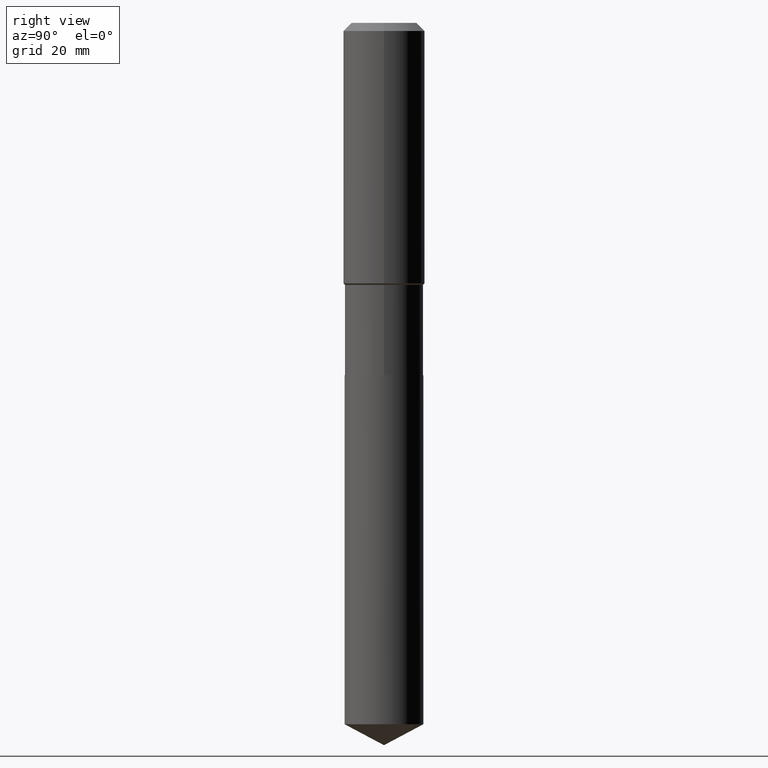
[diagram: clean part render]
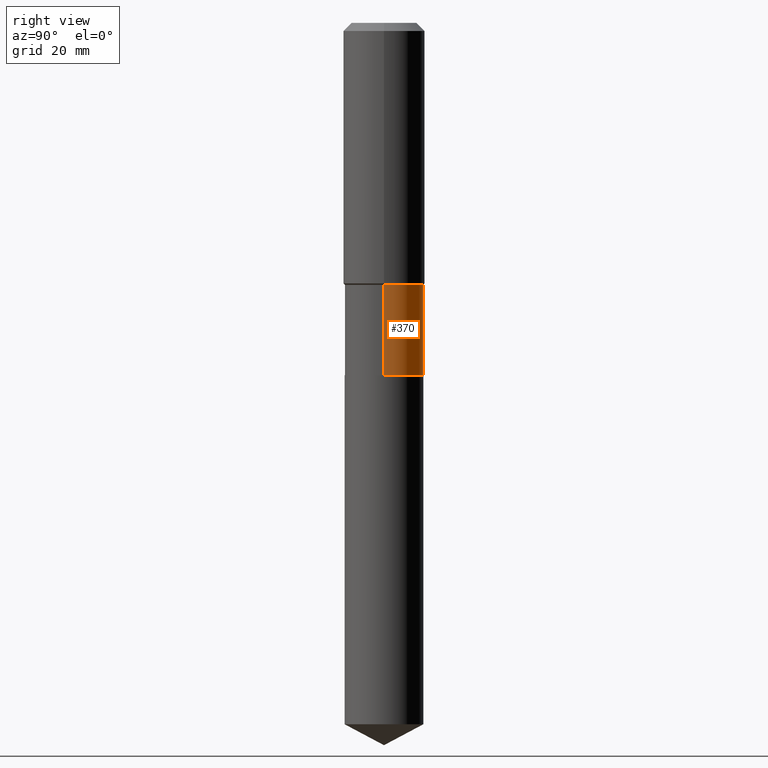
[diagram: same view with one face highlighted and labeled with its STEP entity id]
A machine part, right view. The second image highlights one B-rep face of the part: STEP entity #370.
In plain terms, the highlighted cylindrical surface (partial cylindrical patch) has radius 6.7501 mm, axis along (-0, 0, 1).
Its self-contained STEP definition (entity closure, byte-faithful):
#37 = ORIENTED_EDGE ( 'NONE', *, *, #309, .F. ) ;
#38 = CARTESIAN_POINT ( 'NONE',  ( 0.2657499999999999862, -8.038088338284680266E-15, -1.770699999999999275 ) ) ;
#53 = CARTESIAN_POINT ( 'NONE',  ( 0.000000000000000000, 0.000000000000000000, 0.000000000000000000 ) ) ;
#76 = CIRCLE ( 'NONE', #215, 0.2657499999999999862 ) ;
#87 = AXIS2_PLACEMENT_3D ( 'NONE', #53, #120, #267 ) ;
#92 = CYLINDRICAL_SURFACE ( 'NONE', #87, 0.2657500000000000417 ) ;
#115 = VERTEX_POINT ( 'NONE', #195 ) ;
#120 = DIRECTION ( 'NONE',  ( -2.445468806185136597E-29, 3.491481338843145583E-15, 1.000000000000000000 ) ) ;
#131 = FACE_OUTER_BOUND ( 'NONE', #350, .T. ) ;
#132 = VERTEX_POINT ( 'NONE', #262 ) ;
#139 = CIRCLE ( 'NONE', #458, 0.2657500000000000417 ) ;
#143 = VECTOR ( 'NONE', #310, 39.37007874015748143 ) ;
#154 = CARTESIAN_POINT ( 'NONE',  ( -0.2657500000000000417, 1.888267320282466541E-15, -1.307207000235241229E-29 ) ) ;
#178 = VECTOR ( 'NONE', #268, 39.37007874015748143 ) ;
#195 = CARTESIAN_POINT ( 'NONE',  ( -0.2657500000000000973, -5.360222513222844389E-15, -2.381399999999999739 ) ) ;
#203 = ORIENTED_EDGE ( 'NONE', *, *, #489, .F. ) ;
#215 = AXIS2_PLACEMENT_3D ( 'NONE', #277, #481, #230 ) ;
#219 = CARTESIAN_POINT ( 'NONE',  ( 5.823639415049283689E-29, -8.314613660321065363E-15, -2.381399999999999739 ) ) ;
#228 = CARTESIAN_POINT ( 'NONE',  ( -0.2657499999999999862, -5.360222513222844389E-15, -1.770699999999999275 ) ) ;
#230 = DIRECTION ( 'NONE',  ( 1.000000000000000000, -6.982962677686264344E-15, 0.000000000000000000 ) ) ;
#255 = EDGE_CURVE ( 'NONE', #132, #115, #139, .T. ) ;
#262 = CARTESIAN_POINT ( 'NONE',  ( 0.2657500000000000417, -1.017033599191619229E-14, -2.381399999999999739 ) ) ;
#263 = ORIENTED_EDGE ( 'NONE', *, *, #469, .T. ) ;
#267 = DIRECTION ( 'NONE',  ( 1.000000000000000000, -6.982962677686265133E-15, 4.876176775795935232E-29 ) ) ;
#268 = DIRECTION ( 'NONE',  ( -2.445468806185136877E-29, 3.491481338843145188E-15, 1.000000000000000000 ) ) ;
#277 = CARTESIAN_POINT ( 'NONE',  ( 4.330191615112019703E-29, -6.182366006689555708E-15, -1.770699999999999275 ) ) ;
#293 = ORIENTED_EDGE ( 'NONE', *, *, #255, .T. ) ;
#304 = VERTEX_POINT ( 'NONE', #38 ) ;
#309 = EDGE_CURVE ( 'NONE', #304, #444, #76, .T. ) ;
#310 = DIRECTION ( 'NONE',  ( -2.445468806185136877E-29, 3.491481338843145188E-15, 1.000000000000000000 ) ) ;
#337 = DIRECTION ( 'NONE',  ( 1.000000000000000000, -6.982962677686266711E-15, 0.000000000000000000 ) ) ;
#350 = EDGE_LOOP ( 'NONE', ( #293, #263, #37, #203 ) ) ;
#370 = ADVANCED_FACE ( 'NONE', ( #131 ), #92, .T. ) ;
#387 = DIRECTION ( 'NONE',  ( -2.445468806185136597E-29, 3.491481338843145583E-15, 1.000000000000000000 ) ) ;
#397 = LINE ( 'NONE', #154, #143 ) ;
#435 = CARTESIAN_POINT ( 'NONE',  ( 0.2657500000000000417, -1.855722331595125347E-15, 1.295843978167770013E-29 ) ) ;
#444 = VERTEX_POINT ( 'NONE', #228 ) ;
#458 = AXIS2_PLACEMENT_3D ( 'NONE', #219, #387, #337 ) ;
#469 = EDGE_CURVE ( 'NONE', #115, #444, #397, .T. ) ;
#475 = LINE ( 'NONE', #435, #178 ) ;
#481 = DIRECTION ( 'NONE',  ( -2.445468806185136597E-29, 3.491481338843145583E-15, 1.000000000000000000 ) ) ;
#489 = EDGE_CURVE ( 'NONE', #132, #304, #475, .T. ) ;